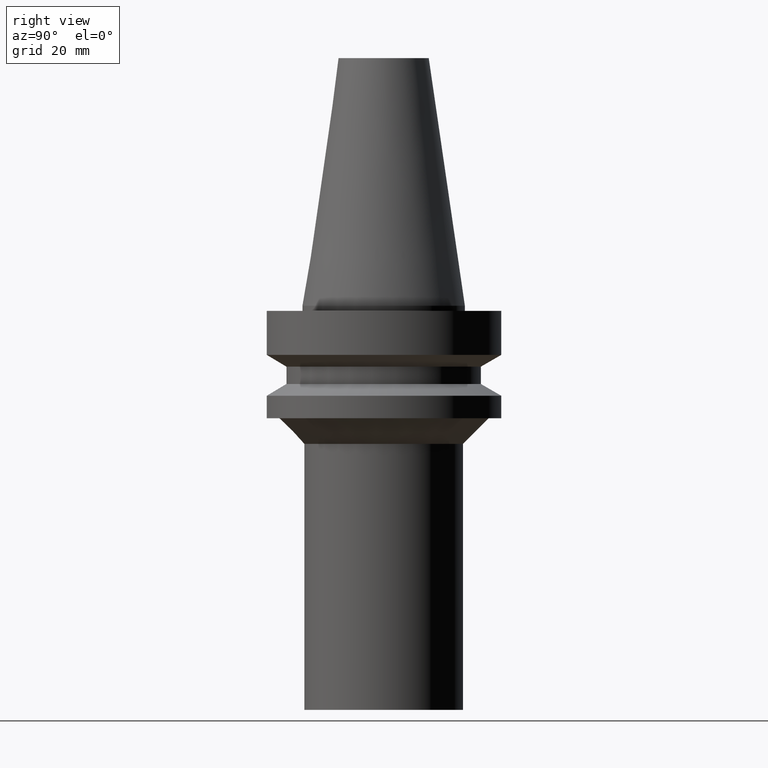
[diagram: clean part render]
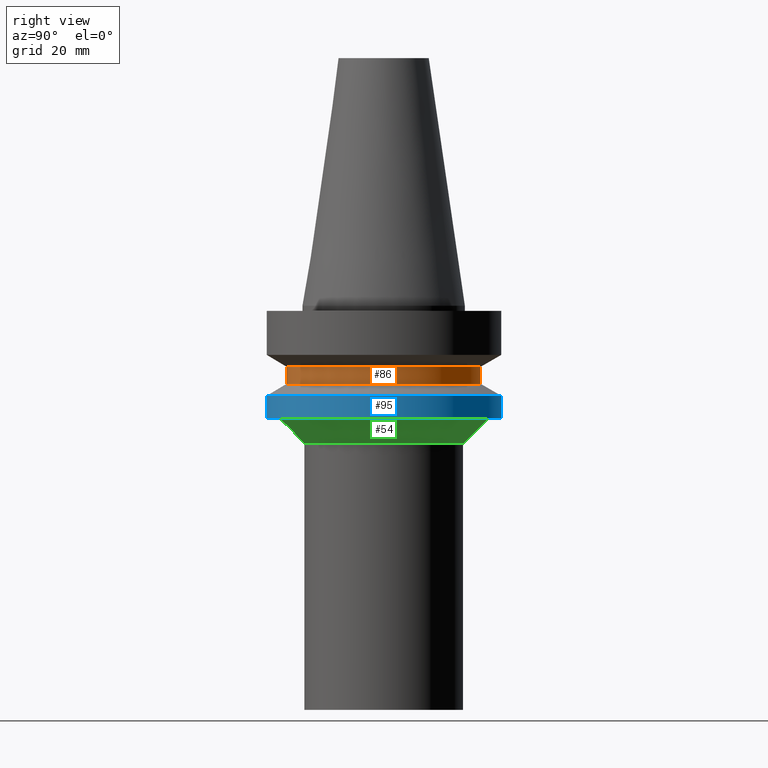
[diagram: same view with three faces highlighted in distinct colors, each labeled with its STEP entity id]
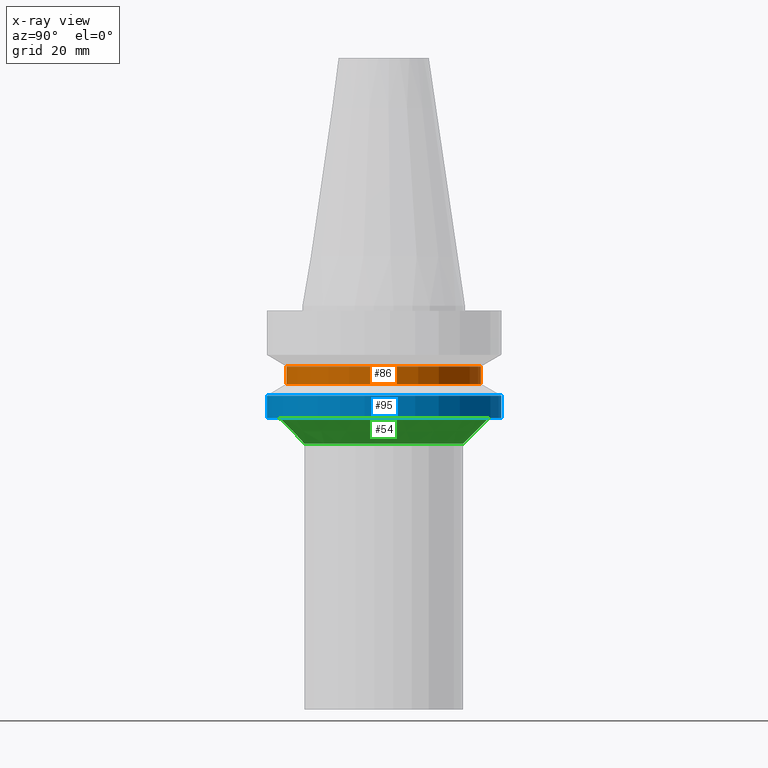
[diagram: x-ray of the same camera — body ghosted, the three highlighted faces saturated]
A machine part, right view with three faces highlighted in distinct colors.
The next image is the same camera in x-ray (body ghosted, the three faces saturated) — at least one of them is partly hidden behind the body in this view.
Their STEP definitions:

[orange] entity #86 — the highlighted cylindrical surface (bore or boss wall) has radius 19 mm, axis along (0, 0, -1).
#76=EDGE_CURVE('Unnamed[1]',#172,#172,#173,.T.);
#86=ADVANCED_FACE('Unnamed[1]',(#187,#188),#189,.T.);
#105=EDGE_CURVE('Unnamed[1]',#218,#218,#219,.T.);
#172=VERTEX_POINT('',#290);
#173=CIRCLE('',#291,19.0);
#187=FACE_BOUND('',#309,.T.);
#188=FACE_BOUND('',#310,.T.);
#189=CYLINDRICAL_SURFACE('',#311,19.0);
#218=VERTEX_POINT('',#347);
#219=CIRCLE('',#348,19.0);
#290=CARTESIAN_POINT('',(2.64441825770234E-015,19.0,-11.90940108));
#291=AXIS2_PLACEMENT_3D('',#410,#411,#412);
#309=EDGE_LOOP('',(#426));
#310=EDGE_LOOP('',(#427));
#311=AXIS2_PLACEMENT_3D('',#428,#429,#430);
#347=CARTESIAN_POINT('',(3.39519499625851E-015,19.0,-15.29059892));
#348=AXIS2_PLACEMENT_3D('',#463,#464,#465);
#410=CARTESIAN_POINT('',(2.64441825770234E-015,1.4584809912384E-015,-11.90940108));
#411=DIRECTION('',(2.22044604925031E-016,1.22464679914735E-016,-1.0));
#412=DIRECTION('',(-6.16297582203915E-033,1.0,1.22464679914735E-016));
#426=ORIENTED_EDGE('',*,*,#105,.F.);
#427=ORIENTED_EDGE('',*,*,#76,.T.);
#428=CARTESIAN_POINT('',(3.01980662698043E-015,1.6655196468404E-015,-13.6));
#429=DIRECTION('',(2.22044604925031E-016,1.22464679914735E-016,-1.0));
#430=DIRECTION('',(-6.16297582203915E-033,1.0,1.22464679914735E-016));
#463=CARTESIAN_POINT('',(3.39519499625851E-015,1.8725583024424E-015,-15.29059892));
#464=DIRECTION('',(2.22044604925031E-016,1.22464679914735E-016,-1.0));
#465=DIRECTION('',(-6.16297582203915E-033,1.0,1.22464679914735E-016));

[blue] entity #95 — the highlighted cylindrical surface (bore or boss wall) has radius 23 mm, axis along (0, 0, -1).
#56=EDGE_CURVE('Unnamed[1]',#142,#142,#143,.T.);
#83=EDGE_CURVE('Unnamed[1]',#183,#183,#184,.T.);
#95=ADVANCED_FACE('Unnamed[1]',(#202,#203),#204,.T.);
#142=VERTEX_POINT('',#253);
#143=CIRCLE('',#254,23.0);
#183=VERTEX_POINT('',#304);
#184=CIRCLE('',#305,23.0);
#202=FACE_BOUND('',#327,.T.);
#203=FACE_BOUND('',#328,.T.);
#204=CYLINDRICAL_SURFACE('',#329,23.0);
#253=CARTESIAN_POINT('',(4.88498130835069E-015,23.0,-22.0));
#254=AXIS2_PLACEMENT_3D('',#379,#380,#381);
#304=CARTESIAN_POINT('',(3.90798504668055E-015,23.0,-17.6));
#305=AXIS2_PLACEMENT_3D('',#422,#423,#424);
#327=EDGE_LOOP('',(#444));
#328=EDGE_LOOP('',(#445));
#329=AXIS2_PLACEMENT_3D('',#446,#447,#448);
#379=CARTESIAN_POINT('',(4.88498130835069E-015,2.69422295812418E-015,-22.0));
#380=DIRECTION('',(2.22044604925031E-016,1.22464679914735E-016,-1.0));
#381=DIRECTION('',(-6.16297582203915E-033,1.0,1.22464679914735E-016));
#422=CARTESIAN_POINT('',(3.90798504668055E-015,2.15537836649934E-015,-17.6));
#423=DIRECTION('',(2.22044604925031E-016,1.22464679914735E-016,-1.0));
#424=DIRECTION('',(-6.16297582203915E-033,1.0,1.22464679914735E-016));
#444=ORIENTED_EDGE('',*,*,#56,.F.);
#445=ORIENTED_EDGE('',*,*,#83,.T.);
#446=CARTESIAN_POINT('',(4.39648317751562E-015,2.42480066231176E-015,-19.8));
#447=DIRECTION('',(2.22044604925031E-016,1.22464679914735E-016,-1.0));
#448=DIRECTION('',(-6.16297582203915E-033,1.0,1.22464679914735E-016));

[green] entity #54 — the highlighted conical surface has half-angle 45 deg.
#54=ADVANCED_FACE('Unnamed[1]',(#138,#139),#140,.T.);
#69=EDGE_CURVE('Unnamed[1]',#163,#163,#164,.T.);
#107=EDGE_CURVE('Unnamed[1]',#221,#221,#222,.T.);
#138=FACE_BOUND('',#248,.T.);
#139=FACE_BOUND('',#249,.T.);
#140=CONICAL_SURFACE('',#250,18.0,0.785398163397448);
#163=VERTEX_POINT('',#279);
#164=CIRCLE('',#280,15.5);
#221=VERTEX_POINT('',#351);
#222=CIRCLE('',#352,20.5);
#248=EDGE_LOOP('',(#374));
#249=EDGE_LOOP('',(#375));
#250=AXIS2_PLACEMENT_3D('',#376,#377,#378);
#279=CARTESIAN_POINT('',(5.99520433297585E-015,15.5,-27.0));
#280=AXIS2_PLACEMENT_3D('',#403,#404,#405);
#351=CARTESIAN_POINT('',(4.88498130835069E-015,20.5,-22.0));
#352=AXIS2_PLACEMENT_3D('',#466,#467,#468);
#374=ORIENTED_EDGE('',*,*,#69,.F.);
#375=ORIENTED_EDGE('',*,*,#107,.T.);
#376=CARTESIAN_POINT('',(5.44009282066327E-015,3.00038465791101E-015,-24.5));
#377=DIRECTION('',(-2.22044604925031E-016,-1.22464679914735E-016,1.0));
#378=DIRECTION('',(-6.16297582203915E-033,1.0,1.22464679914735E-016));
#403=CARTESIAN_POINT('',(5.99520433297585E-015,3.30654635769785E-015,-27.0));
#404=DIRECTION('',(2.22044604925031E-016,1.22464679914735E-016,-1.0));
#405=DIRECTION('',(-6.16297582203915E-033,1.0,1.22464679914735E-016));
#466=CARTESIAN_POINT('',(4.88498130835069E-015,2.69422295812418E-015,-22.0));
#467=DIRECTION('',(2.22044604925031E-016,1.22464679914735E-016,-1.0));
#468=DIRECTION('',(-6.16297582203915E-033,1.0,1.22464679914735E-016));